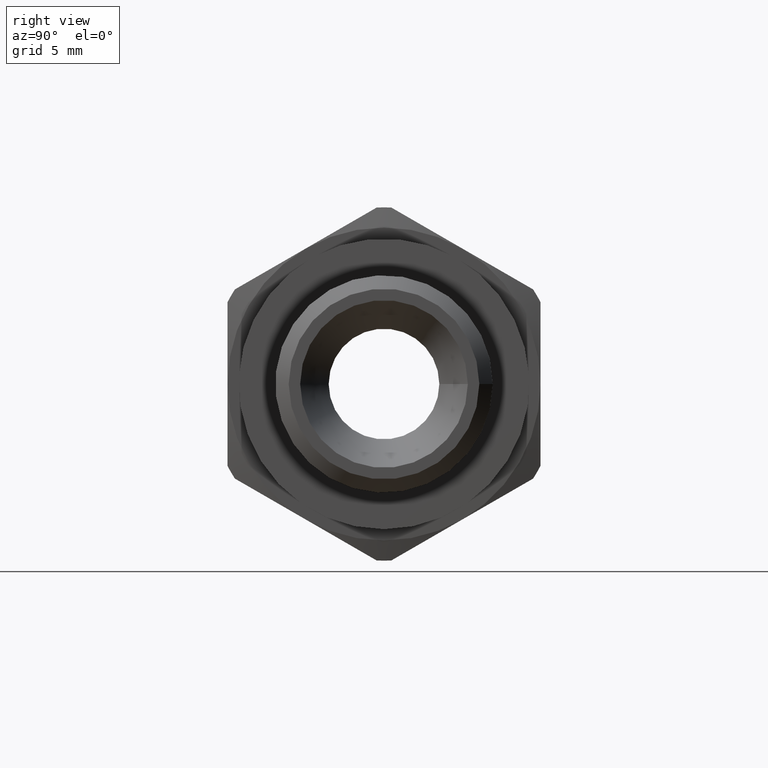
[diagram: clean part render]
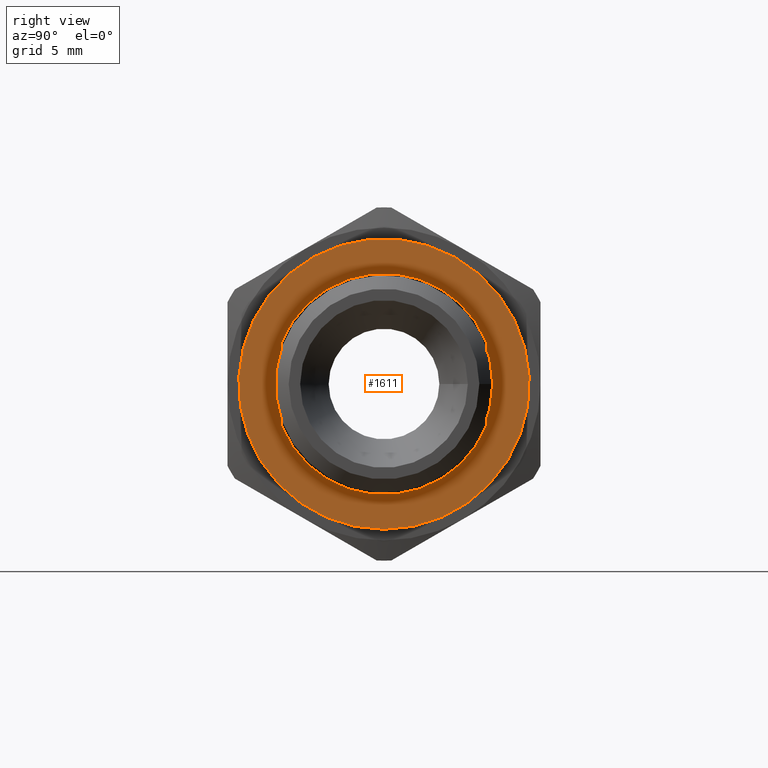
[diagram: same view with one face highlighted and labeled with its STEP entity id]
A machine part, right view. The second image highlights one B-rep face of the part: STEP entity #1611.
In plain terms, the highlighted planar face has unit normal (-1, 0, 0).
Its self-contained STEP definition (entity closure, byte-faithful):
#1446=CARTESIAN_POINT('',(1.828250529878225,4.600000000000000,1.500000000000000));
#1447=VERTEX_POINT('',#1446);
#1448=CARTESIAN_POINT('',(1.828250529878225,-4.600000000000000,1.500000000000000));
#1449=VERTEX_POINT('',#1448);
#1450=CARTESIAN_POINT('',(0.0,0.0,1.500000000000000));
#1451=DIRECTION('',(0.0,0.0,-1.000000000000000));
#1452=DIRECTION('',(-0.369343541389540,0.929292929292929,0.0));
#1453=AXIS2_PLACEMENT_3D('',#1450,#1451,#1452);
#1454=CIRCLE('',#1453,4.949999999999999);
#1455=EDGE_CURVE('',#1447,#1449,#1454,.T.);
#1488=CARTESIAN_POINT('',(-1.828250529878225,-4.600000000000000,1.500000000000000));
#1489=VERTEX_POINT('',#1488);
#1490=CARTESIAN_POINT('',(1.828250529878225,-4.600000000000000,1.500000000000000));
#1491=DIRECTION('',(-1.0,0.0,0.0));
#1492=VECTOR('',#1491,3.656501059756449);
#1493=LINE('',#1490,#1492);
#1494=EDGE_CURVE('',#1449,#1489,#1493,.T.);
#1519=CARTESIAN_POINT('',(-1.828250529878225,4.600000000000000,1.500000000000000));
#1520=VERTEX_POINT('',#1519);
#1521=CARTESIAN_POINT('',(0.0,0.0,1.500000000000000));
#1522=DIRECTION('',(0.0,0.0,-1.0));
#1523=DIRECTION('',(0.369343541389540,-0.929292929292929,0.0));
#1524=AXIS2_PLACEMENT_3D('',#1521,#1522,#1523);
#1525=CIRCLE('',#1524,4.950000000000000);
#1526=EDGE_CURVE('',#1489,#1520,#1525,.T.);
#1552=CARTESIAN_POINT('',(-1.828250529878225,4.600000000000000,1.500000000000000));
#1553=DIRECTION('',(1.0,0.0,0.0));
#1554=VECTOR('',#1553,3.656501059756450);
#1555=LINE('',#1552,#1554);
#1556=EDGE_CURVE('',#1520,#1447,#1555,.T.);
#1574=CARTESIAN_POINT('',(6.500000000000000,7.960204E-016,1.500000000000000));
#1575=VERTEX_POINT('',#1574);
#1576=CARTESIAN_POINT('',(0.0,0.0,1.500000000000000));
#1577=DIRECTION('',(0.0,0.0,-1.0));
#1578=DIRECTION('',(-1.0,0.0,0.0));
#1579=AXIS2_PLACEMENT_3D('',#1576,#1577,#1578);
#1580=CIRCLE('',#1579,6.500000000000000);
#1581=EDGE_CURVE('',#1575,#1575,#1580,.T.);
#1597=CARTESIAN_POINT('',(0.0,0.0,1.500000000000000));
#1598=DIRECTION('',(0.0,0.0,-1.0));
#1599=DIRECTION('',(-1.0,0.0,0.0));
#1600=AXIS2_PLACEMENT_3D('',#1597,#1598,#1599);
#1601=PLANE('',#1600);
#1602=ORIENTED_EDGE('',*,*,#1581,.F.);
#1603=EDGE_LOOP('',(#1602));
#1604=FACE_OUTER_BOUND('',#1603,.T.);
#1605=ORIENTED_EDGE('',*,*,#1455,.T.);
#1606=ORIENTED_EDGE('',*,*,#1494,.T.);
#1607=ORIENTED_EDGE('',*,*,#1526,.T.);
#1608=ORIENTED_EDGE('',*,*,#1556,.T.);
#1609=EDGE_LOOP('',(#1605,#1606,#1607,#1608));
#1610=FACE_BOUND('',#1609,.T.);
#1611=ADVANCED_FACE('',(#1604,#1610),#1601,.F.);